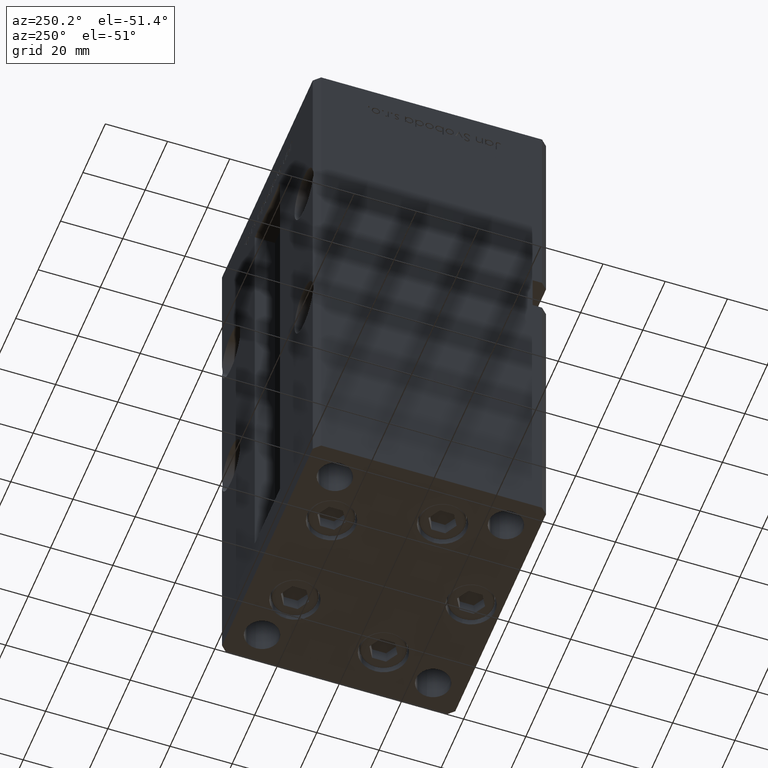
[diagram: clean part render]
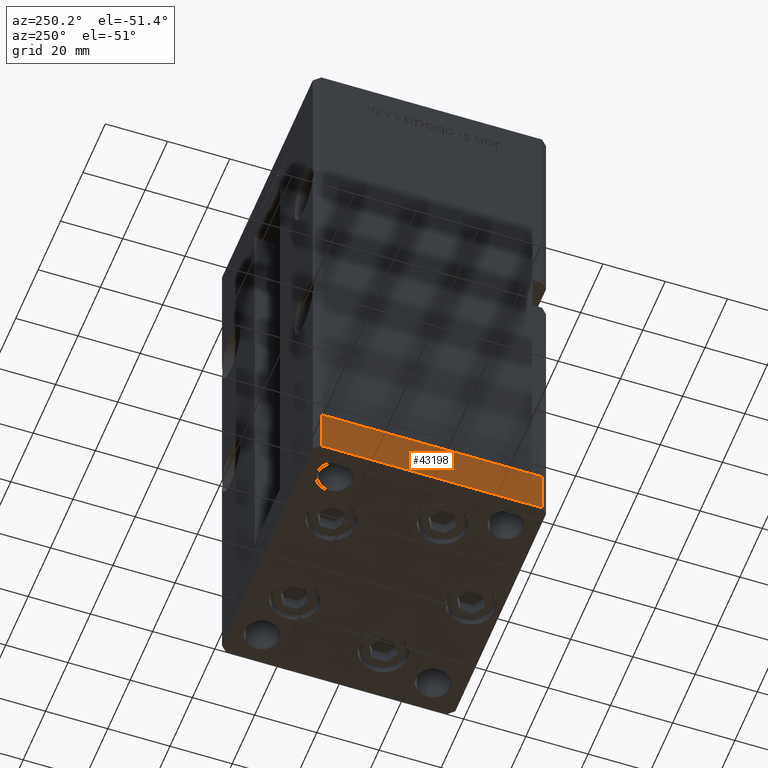
[diagram: same view with one face highlighted and labeled with its STEP entity id]
A machine part, auxiliary view. The second image highlights one B-rep face of the part: STEP entity #43198.
In plain terms, the highlighted planar face has unit normal (-1, -0, 0).
Its self-contained STEP definition (entity closure, byte-faithful):
#530 = EDGE_LOOP ( 'NONE', ( #26271, #14840, #24022, #17823 ) ) ;
#895 = VERTEX_POINT ( 'NONE', #38173 ) ;
#4152 = VERTEX_POINT ( 'NONE', #17387 ) ;
#4255 = CARTESIAN_POINT ( 'NONE',  ( 42.49999999999992895, 35.50000000000000000, -15.00000000000000000 ) ) ;
#4778 = EDGE_CURVE ( 'NONE', #51779, #895, #46332, .T. ) ;
#8458 = EDGE_CURVE ( 'NONE', #895, #4152, #13882, .T. ) ;
#8997 = DIRECTION ( 'NONE',  ( -1.172770800660376741E-15, 1.000000000000000000, 0.000000000000000000 ) ) ;
#9185 = DIRECTION ( 'NONE',  ( 0.000000000000000000, 0.000000000000000000, 1.000000000000000000 ) ) ;
#12726 = CARTESIAN_POINT ( 'NONE',  ( 42.50000000000000711, -35.50000000000000000, -15.00000000000000000 ) ) ;
#13615 = DIRECTION ( 'NONE',  ( 1.000000000000000000, 1.172770800660376741E-15, -0.000000000000000000 ) ) ;
#13882 = LINE ( 'NONE', #18453, #19390 ) ;
#14667 = FACE_OUTER_BOUND ( 'NONE', #530, .T. ) ;
#14840 = ORIENTED_EDGE ( 'NONE', *, *, #4778, .F. ) ;
#16701 = VECTOR ( 'NONE', #9185, 1000.000000000000000 ) ;
#17387 = CARTESIAN_POINT ( 'NONE',  ( 42.49999999999992895, 35.50000000000000000, 0.000000000000000000 ) ) ;
#17782 = CARTESIAN_POINT ( 'NONE',  ( 42.50000000000000711, -35.50000000000000000, -15.00000000000000000 ) ) ;
#17823 = ORIENTED_EDGE ( 'NONE', *, *, #31636, .T. ) ;
#18453 = CARTESIAN_POINT ( 'NONE',  ( 42.50000000000000711, -35.50000000000000000, 0.000000000000000000 ) ) ;
#19390 = VECTOR ( 'NONE', #42940, 1000.000000000000000 ) ;
#20422 = EDGE_CURVE ( 'NONE', #51779, #22583, #37240, .T. ) ;
#20661 = LINE ( 'NONE', #4255, #31122 ) ;
#22583 = VERTEX_POINT ( 'NONE', #52612 ) ;
#24022 = ORIENTED_EDGE ( 'NONE', *, *, #20422, .T. ) ;
#26271 = ORIENTED_EDGE ( 'NONE', *, *, #8458, .F. ) ;
#26788 = DIRECTION ( 'NONE',  ( -1.172770800660376741E-15, 1.000000000000000000, 0.000000000000000000 ) ) ;
#31122 = VECTOR ( 'NONE', #32499, 1000.000000000000000 ) ;
#31636 = EDGE_CURVE ( 'NONE', #22583, #4152, #20661, .T. ) ;
#32499 = DIRECTION ( 'NONE',  ( 0.000000000000000000, 0.000000000000000000, 1.000000000000000000 ) ) ;
#34000 = CARTESIAN_POINT ( 'NONE',  ( 42.50000000000000711, -35.50000000000000000, -15.00000000000000000 ) ) ;
#34325 = CARTESIAN_POINT ( 'NONE',  ( 42.50000000000000711, -35.50000000000000000, -15.00000000000000000 ) ) ;
#34815 = AXIS2_PLACEMENT_3D ( 'NONE', #34325, #13615, #26788 ) ;
#37240 = LINE ( 'NONE', #34000, #37609 ) ;
#37609 = VECTOR ( 'NONE', #8997, 1000.000000000000000 ) ;
#38173 = CARTESIAN_POINT ( 'NONE',  ( 42.50000000000000711, -35.50000000000000000, 0.000000000000000000 ) ) ;
#39414 = PLANE ( 'NONE',  #34815 ) ;
#42940 = DIRECTION ( 'NONE',  ( -1.172770800660376741E-15, 1.000000000000000000, 0.000000000000000000 ) ) ;
#43198 = ADVANCED_FACE ( 'NONE', ( #14667 ), #39414, .T. ) ;
#46332 = LINE ( 'NONE', #17782, #16701 ) ;
#51779 = VERTEX_POINT ( 'NONE', #12726 ) ;
#52612 = CARTESIAN_POINT ( 'NONE',  ( 42.49999999999992895, 35.50000000000000000, -15.00000000000000000 ) ) ;